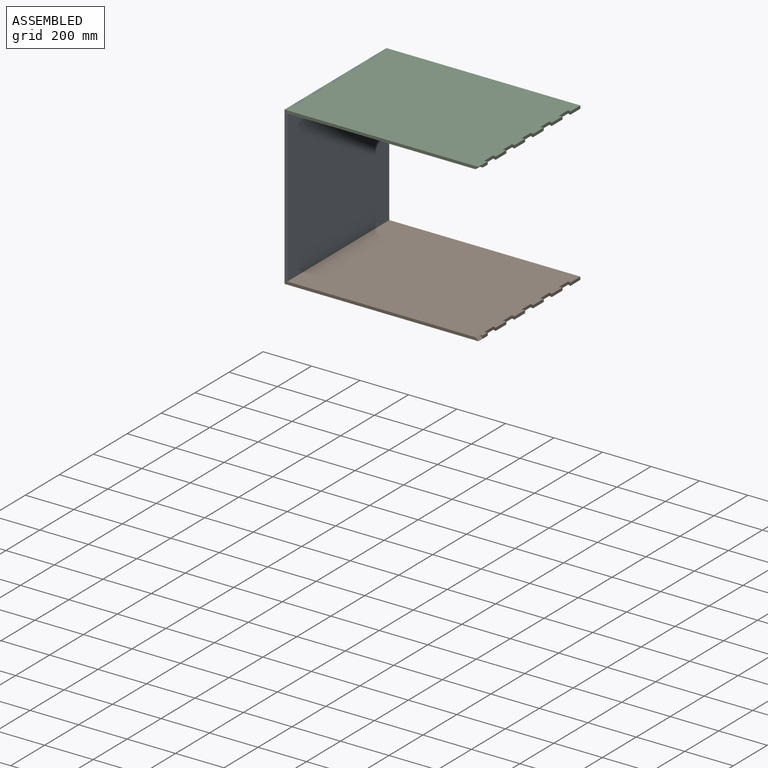
[diagram: assembled view]
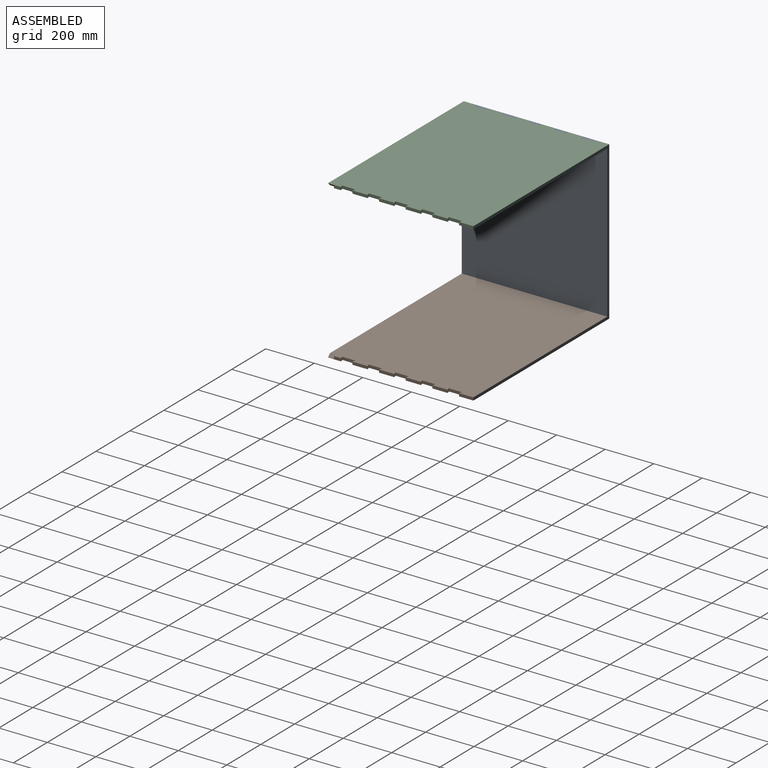
[diagram: assembled view, second angle]
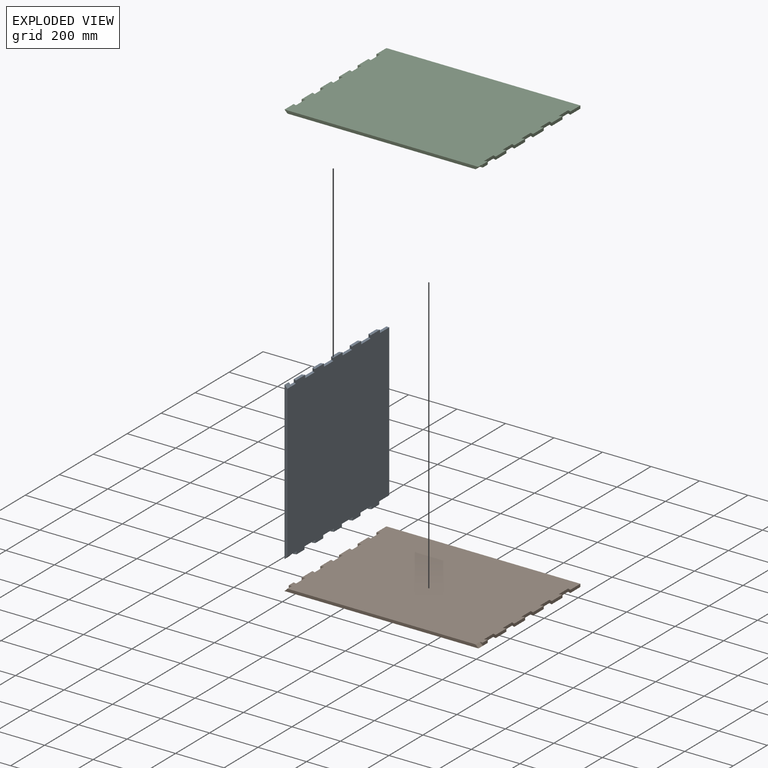
[diagram: exploded view]
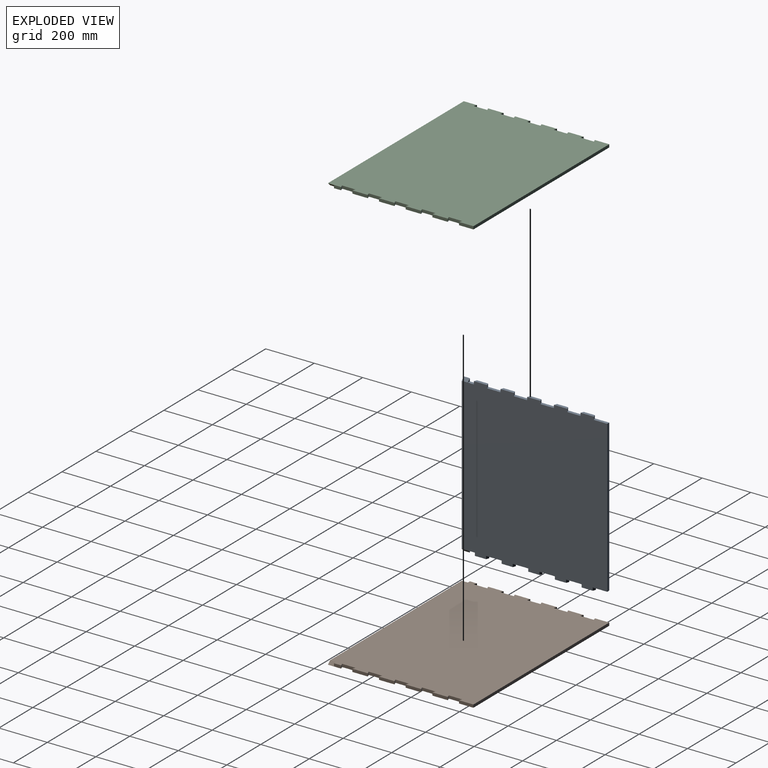
[diagram: exploded view, second angle]
ASSEMBLY  parts=3 mates=6
PART A: 50 faces, bbox 12x600x650 mm
  f0: plane 55x12mm, normal (0,0,-1), area 607.6mm2, adj f5,f13,f42,f46
  f1: plane 55x12mm, normal (0,0,-1), area 607.6mm2, adj f5,f13,f39,f43
  f2: plane 55x12mm, normal (0,0,-1), area 607.6mm2, adj f5,f13,f36,f40
  f3: plane 55x12mm, normal (0,0,-1), area 607.6mm2, adj f5,f13,f33,f37
  f4: plane 55x12mm, normal (0,0,-1), area 607.6mm2, adj f5,f13,f34,f48
  f5: plane 650x600mm, normal (1,0,0), area 381675.9mm2, adj f0,f1,f2,f3,f4,f6,f7,f8
  f6: plane 650x12mm, normal (0,-1,0), area 7656mm2, adj f5,f13,f31,f32
  f7: plane 626x12mm, normal (0,1,0), area 7512mm2, adj f5,f13,f30,f49
  f8: plane 55x12mm, normal (0,0,1), area 607.6mm2, adj f5,f13,f23,f26
  f9: plane 55x12mm, normal (0,0,1), area 607.6mm2, adj f5,f13,f20,f24
  f10: plane 55x12mm, normal (0,0,1), area 607.6mm2, adj f5,f13,f17,f21
  f11: plane 55x12mm, normal (0,0,1), area 607.6mm2, adj f5,f13,f14,f18
  f12: plane 55x12mm, normal (0,0,1), area 607.6mm2, adj f5,f13,f15,f29
  f13: plane 650x600mm, normal (-1,0,0), area 382275.9mm2, adj f0,f1,f2,f3,f4,f6,f7,f8
  f14: plane 12x12mm, normal (-0.34,0.94,0), area 153.2mm2, adj f5,f11,f13,f16
  f15: plane 12x12mm, normal (-0.34,-0.94,0), area 153.2mm2, adj f5,f12,f13,f16
  f16: plane 63.74x12mm, normal (0,0,1), area 712.4mm2, adj f5,f13,f14,f15
  f17: plane 12x12mm, normal (-0.34,0.94,0), area 153.2mm2, adj f5,f10,f13,f19
  f18: plane 12x12mm, normal (-0.34,-0.94,0), area 153.2mm2, adj f5,f11,f13,f19
  f19: plane 63.74x12mm, normal (0,0,1), area 712.4mm2, adj f5,f13,f17,f18
  f20: plane 12x12mm, normal (-0.34,0.94,0), area 153.2mm2, adj f5,f9,f13,f22
  f21: plane 12x12mm, normal (-0.34,-0.94,0), area 153.2mm2, adj f5,f10,f13,f22
  f22: plane 63.74x12mm, normal (0,0,1), area 712.4mm2, adj f5,f13,f20,f21
  f23: plane 12x12mm, normal (-0.34,0.94,0), area 153.2mm2, adj f5,f8,f13,f25
  f24: plane 12x12mm, normal (-0.34,-0.94,0), area 153.2mm2, adj f5,f9,f13,f25
  f25: plane 63.74x12mm, normal (0,0,1), area 712.4mm2, adj f5,f13,f23,f24
  f26: plane 12x12mm, normal (-0.34,-0.94,0), area 153.2mm2, adj f5,f8,f13,f28
  f27: plane 12x12mm, normal (0,1,0), area 72mm2, adj f13,f28,f31
  f28: plane 29.37x12mm, normal (0,0,1), area 326.2mm2, adj f5,f13,f26,f27
  f29: plane 12x12mm, normal (-0.34,0.94,0), area 153.2mm2, adj f5,f12,f13,f30
  f30: plane 59.37x12mm, normal (0,0,1), area 686.2mm2, adj f5,f7,f13,f29
  f31: plane 25x12mm, normal (0.71,0,0.71), area 424.3mm2, adj f5,f6,f13,f27
  f32: plane 25x12mm, normal (0.71,0,-0.71), area 424.3mm2, adj f5,f6,f13,f45
  f33: plane 12x12mm, normal (0.34,0.94,0), area 153.2mm2, adj f3,f5,f13,f35
  f34: plane 12x12mm, normal (0.34,-0.94,0), area 153.2mm2, adj f4,f5,f13,f35
  f35: plane 63.74x12mm, normal (0,0,-1), area 712.4mm2, adj f5,f13,f33,f34
  f36: plane 12x12mm, normal (0.34,0.94,0), area 153.2mm2, adj f2,f5,f13,f38
  f37: plane 12x12mm, normal (0.34,-0.94,0), area 153.2mm2, adj f3,f5,f13,f38
  f38: plane 63.74x12mm, normal (0,0,-1), area 712.4mm2, adj f5,f13,f36,f37
  f39: plane 12x12mm, normal (0.34,0.94,0), area 153.2mm2, adj f1,f5,f13,f41
  f40: plane 12x12mm, normal (0.34,-0.94,0), area 153.2mm2, adj f2,f5,f13,f41
  f41: plane 63.74x12mm, normal (0,0,-1), area 712.4mm2, adj f5,f13,f39,f40
  f42: plane 12x12mm, normal (0.34,0.94,0), area 153.2mm2, adj f0,f5,f13,f44
  f43: plane 12x12mm, normal (0.34,-0.94,0), area 153.2mm2, adj f1,f5,f13,f44
  f44: plane 63.74x12mm, normal (0,0,-1), area 712.4mm2, adj f5,f13,f42,f43
  f45: plane 12x12mm, normal (0,1,0), area 72mm2, adj f13,f32,f47
  f46: plane 12x12mm, normal (0.34,-0.94,0), area 153.2mm2, adj f0,f5,f13,f47
  f47: plane 29.37x12mm, normal (0,0,-1), area 326.2mm2, adj f5,f13,f45,f46
  f48: plane 12x12mm, normal (0.34,0.94,0), area 153.2mm2, adj f4,f5,f13,f49
  f49: plane 59.37x12mm, normal (0,0,-1), area 686.2mm2, adj f5,f7,f13,f48
PART B: 50 faces, bbox 800x600x12 mm
  f0: plane 800x600mm, normal (0,0,1), area 473324.1mm2, adj f1,f2,f3,f4,f5,f6,f7,f9
  f1: plane 800x12mm, normal (0,-1,0), area 9456mm2, adj f0,f8,f31,f48
  f2: plane 29.37x12mm, normal (1,0,0), area 352.4mm2, adj f0,f8,f33,f49
  f3: plane 59.37x12mm, normal (1,0,0), area 712.4mm2, adj f0,f8,f15,f46
  f4: plane 63.74x12mm, normal (1,0,0), area 764.8mm2, adj f0,f8,f43,f45
  f5: plane 63.74x12mm, normal (1,0,0), area 764.8mm2, adj f0,f8,f40,f42
  f6: plane 63.74x12mm, normal (1,0,0), area 764.8mm2, adj f0,f8,f37,f39
  f7: plane 63.74x12mm, normal (1,0,0), area 764.8mm2, adj f0,f8,f34,f36
  f8: plane 800x600mm, normal (0,0,-1), area 473924.1mm2, adj f1,f2,f3,f4,f5,f6,f7,f9
  f9: plane 29.37x12mm, normal (-1,0,0), area 352.4mm2, adj f0,f8,f28,f32
  f10: plane 63.74x12mm, normal (-1,0,0), area 764.8mm2, adj f0,f8,f25,f29
  f11: plane 63.74x12mm, normal (-1,0,0), area 764.8mm2, adj f0,f8,f22,f26
  f12: plane 63.74x12mm, normal (-1,0,0), area 764.8mm2, adj f0,f8,f19,f23
  f13: plane 63.74x12mm, normal (-1,0,0), area 764.8mm2, adj f0,f8,f16,f20
  f14: plane 59.37x12mm, normal (-1,0,0), area 712.4mm2, adj f0,f8,f15,f17
  f15: plane 800x12mm, normal (0,1,0), area 9600mm2, adj f0,f3,f8,f14
  f16: plane 12x12mm, normal (0.34,0.94,0), area 153.2mm2, adj f0,f8,f13,f18
  f17: plane 12x12mm, normal (0.34,-0.94,0), area 153.2mm2, adj f0,f8,f14,f18
  f18: plane 55x12mm, normal (-1,0,0), area 660mm2, adj f0,f8,f16,f17
  f19: plane 12x12mm, normal (0.34,0.94,0), area 153.2mm2, adj f0,f8,f12,f21
  f20: plane 12x12mm, normal (0.34,-0.94,0), area 153.2mm2, adj f0,f8,f13,f21
  f21: plane 55x12mm, normal (-1,0,0), area 660mm2, adj f0,f8,f19,f20
  f22: plane 12x12mm, normal (0.34,0.94,0), area 153.2mm2, adj f0,f8,f11,f24
  f23: plane 12x12mm, normal (0.34,-0.94,0), area 153.2mm2, adj f0,f8,f12,f24
  f24: plane 55x12mm, normal (-1,0,0), area 660mm2, adj f0,f8,f22,f23
  f25: plane 12x12mm, normal (0.34,0.94,0), area 153.2mm2, adj f0,f8,f10,f27
  f26: plane 12x12mm, normal (0.34,-0.94,0), area 153.2mm2, adj f0,f8,f11,f27
  f27: plane 55x12mm, normal (-1,0,0), area 660mm2, adj f0,f8,f25,f26
  f28: plane 12x12mm, normal (0.34,0.94,0), area 153.2mm2, adj f0,f8,f9,f30
  f29: plane 12x12mm, normal (0.34,-0.94,0), area 153.2mm2, adj f0,f8,f10,f30
  f30: plane 55x12mm, normal (-1,0,0), area 660mm2, adj f0,f8,f28,f29
  f31: plane 25x12mm, normal (-0.71,0,0.71), area 424.3mm2, adj f0,f1,f8,f32
  f32: plane 12x12mm, normal (0,-1,0), area 72mm2, adj f0,f9,f31
  f33: plane 12x12mm, normal (-0.34,0.94,0), area 153.2mm2, adj f0,f2,f8,f35
  f34: plane 12x12mm, normal (-0.34,-0.94,0), area 153.2mm2, adj f0,f7,f8,f35
  f35: plane 55x12mm, normal (1,0,0), area 660mm2, adj f0,f8,f33,f34
  f36: plane 12x12mm, normal (-0.34,0.94,0), area 153.2mm2, adj f0,f7,f8,f38
  f37: plane 12x12mm, normal (-0.34,-0.94,0), area 153.2mm2, adj f0,f6,f8,f38
  f38: plane 55x12mm, normal (1,0,0), area 660mm2, adj f0,f8,f36,f37
  f39: plane 12x12mm, normal (-0.34,0.94,0), area 153.2mm2, adj f0,f6,f8,f41
  f40: plane 12x12mm, normal (-0.34,-0.94,0), area 153.2mm2, adj f0,f5,f8,f41
  f41: plane 55x12mm, normal (1,0,0), area 660mm2, adj f0,f8,f39,f40
  f42: plane 12x12mm, normal (-0.34,0.94,0), area 153.2mm2, adj f0,f5,f8,f44
  f43: plane 12x12mm, normal (-0.34,-0.94,0), area 153.2mm2, adj f0,f4,f8,f44
  f44: plane 55x12mm, normal (1,0,0), area 660mm2, adj f0,f8,f42,f43
  f45: plane 12x12mm, normal (-0.34,0.94,0), area 153.2mm2, adj f0,f4,f8,f47
  f46: plane 12x12mm, normal (-0.34,-0.94,0), area 153.2mm2, adj f0,f3,f8,f47
  f47: plane 55x12mm, normal (1,0,0), area 660mm2, adj f0,f8,f45,f46
  f48: plane 25x12mm, normal (0.71,0,0.71), area 424.3mm2, adj f0,f1,f8,f49
  f49: plane 12x12mm, normal (0,-1,0), area 72mm2, adj f0,f2,f48
PART C: 50 faces, bbox 800x600x12 mm
  f0: plane 29.37x12mm, normal (1,0,0), area 352.4mm2, adj f6,f7,f33,f49
  f1: plane 59.37x12mm, normal (1,0,0), area 712.4mm2, adj f6,f7,f15,f46
  f2: plane 63.74x12mm, normal (1,0,0), area 764.8mm2, adj f6,f7,f43,f45
  f3: plane 63.74x12mm, normal (1,0,0), area 764.8mm2, adj f6,f7,f40,f42
  f4: plane 63.74x12mm, normal (1,0,0), area 764.8mm2, adj f6,f7,f37,f39
  f5: plane 63.74x12mm, normal (1,0,0), area 764.8mm2, adj f6,f7,f34,f36
  f6: plane 800x600mm, normal (0,0,-1), area 473324.1mm2, adj f0,f1,f2,f3,f4,f5,f8,f9
  f7: plane 800x600mm, normal (0,0,1), area 473924.1mm2, adj f0,f1,f2,f3,f4,f5,f8,f9
  f8: plane 29.37x12mm, normal (-1,0,0), area 352.4mm2, adj f6,f7,f28,f32
  f9: plane 800x12mm, normal (0,-1,0), area 9456mm2, adj f6,f7,f31,f48
  f10: plane 63.74x12mm, normal (-1,0,0), area 764.8mm2, adj f6,f7,f25,f29
  f11: plane 63.74x12mm, normal (-1,0,0), area 764.8mm2, adj f6,f7,f22,f26
  f12: plane 63.74x12mm, normal (-1,0,0), area 764.8mm2, adj f6,f7,f19,f23
  f13: plane 63.74x12mm, normal (-1,0,0), area 764.8mm2, adj f6,f7,f16,f20
  f14: plane 59.37x12mm, normal (-1,0,0), area 712.4mm2, adj f6,f7,f15,f17
  f15: plane 800x12mm, normal (0,1,0), area 9600mm2, adj f1,f6,f7,f14
  f16: plane 12x12mm, normal (0.34,0.94,0), area 153.2mm2, adj f6,f7,f13,f18
  f17: plane 12x12mm, normal (0.34,-0.94,0), area 153.2mm2, adj f6,f7,f14,f18
  f18: plane 55x12mm, normal (-1,0,0), area 660mm2, adj f6,f7,f16,f17
  f19: plane 12x12mm, normal (0.34,0.94,0), area 153.2mm2, adj f6,f7,f12,f21
  f20: plane 12x12mm, normal (0.34,-0.94,0), area 153.2mm2, adj f6,f7,f13,f21
  f21: plane 55x12mm, normal (-1,0,0), area 660mm2, adj f6,f7,f19,f20
  f22: plane 12x12mm, normal (0.34,0.94,0), area 153.2mm2, adj f6,f7,f11,f24
  f23: plane 12x12mm, normal (0.34,-0.94,0), area 153.2mm2, adj f6,f7,f12,f24
  f24: plane 55x12mm, normal (-1,0,0), area 660mm2, adj f6,f7,f22,f23
  f25: plane 12x12mm, normal (0.34,0.94,0), area 153.2mm2, adj f6,f7,f10,f27
  f26: plane 12x12mm, normal (0.34,-0.94,0), area 153.2mm2, adj f6,f7,f11,f27
  f27: plane 55x12mm, normal (-1,0,0), area 660mm2, adj f6,f7,f25,f26
  f28: plane 12x12mm, normal (0.34,0.94,0), area 153.2mm2, adj f6,f7,f8,f30
  f29: plane 12x12mm, normal (0.34,-0.94,0), area 153.2mm2, adj f6,f7,f10,f30
  f30: plane 55x12mm, normal (-1,0,0), area 660mm2, adj f6,f7,f28,f29
  f31: plane 25x12mm, normal (-0.71,0,-0.71), area 424.3mm2, adj f6,f7,f9,f32
  f32: plane 12x12mm, normal (0,-1,0), area 72mm2, adj f6,f8,f31
  f33: plane 12x12mm, normal (-0.34,0.94,0), area 153.2mm2, adj f0,f6,f7,f35
  f34: plane 12x12mm, normal (-0.34,-0.94,0), area 153.2mm2, adj f5,f6,f7,f35
  f35: plane 55x12mm, normal (1,0,0), area 660mm2, adj f6,f7,f33,f34
  f36: plane 12x12mm, normal (-0.34,0.94,0), area 153.2mm2, adj f5,f6,f7,f38
  f37: plane 12x12mm, normal (-0.34,-0.94,0), area 153.2mm2, adj f4,f6,f7,f38
  f38: plane 55x12mm, normal (1,0,0), area 660mm2, adj f6,f7,f36,f37
  f39: plane 12x12mm, normal (-0.34,0.94,0), area 153.2mm2, adj f4,f6,f7,f41
  f40: plane 12x12mm, normal (-0.34,-0.94,0), area 153.2mm2, adj f3,f6,f7,f41
  f41: plane 55x12mm, normal (1,0,0), area 660mm2, adj f6,f7,f39,f40
  f42: plane 12x12mm, normal (-0.34,0.94,0), area 153.2mm2, adj f3,f6,f7,f44
  f43: plane 12x12mm, normal (-0.34,-0.94,0), area 153.2mm2, adj f2,f6,f7,f44
  f44: plane 55x12mm, normal (1,0,0), area 660mm2, adj f6,f7,f42,f43
  f45: plane 12x12mm, normal (-0.34,0.94,0), area 153.2mm2, adj f2,f6,f7,f47
  f46: plane 12x12mm, normal (-0.34,-0.94,0), area 153.2mm2, adj f1,f6,f7,f47
  f47: plane 55x12mm, normal (1,0,0), area 660mm2, adj f6,f7,f45,f46
  f48: plane 25x12mm, normal (0.71,0,-0.71), area 424.3mm2, adj f6,f7,f9,f49
  f49: plane 12x12mm, normal (0,-1,0), area 72mm2, adj f0,f6,f48
PLACE A t=(179.33,-157.24,-254.11)mm
PLACE B t=(179.33,-157.24,-242.11)mm
PLACE C t=(179.33,-157.24,395.89)mm
MATE planar C.f9 <-> A.f6  axis (0,-1,0) through (579.33,-757.24,389.92)mm
MATE planar B.f9 <-> A.f13  axis (-1,0,0) through (179.33,-717.56,-248.11)mm
MATE planar A.f13 <-> C.f10  axis (-1,0,0) through (179.33,-757.24,70.89)mm
MATE planar C.f7 <-> A.f8  axis (0,0,1) through (579.33,-457.21,395.89)mm
MATE planar A.f3 <-> B.f8  axis (0,0,-1) through (191.33,-349.74,-254.11)mm
MATE planar A.f6 <-> B.f1  axis (0,-1,0) through (185.3,-757.24,70.89)mm
